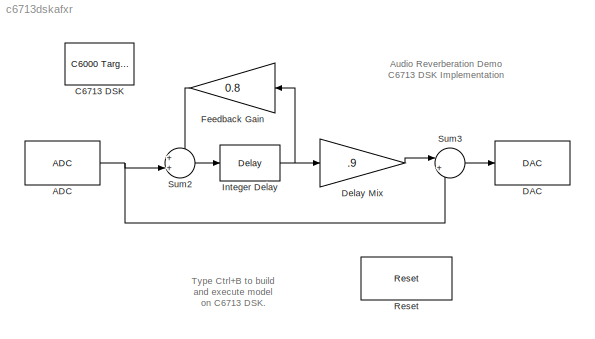
MODEL c6713dskafxr
KIND model
CONFIG PreLoadFcn = load dspafxr;
BLOCK [Reference] ADC  REF=c6713dsklib/ADC
  ADCsource = Mic In
  CodecDataFormat = 20-bit
  FrameSize = 64
  MicGain = off
  OutputDataType = Single
  Ports = [0, 1]
  SampleRate = 48 kHz
  Scaling = Normalize
  SourceBlock = c6713dsklib/ADC
  SourceGain = 0.0
  SourceType = C6713DSK ADC
  Stereo = on
BLOCK [Reference] C6713 DSK  REF=c6000tgtpreflib/C6000 Target\nPreferences
  Ports = []
  ShowPortLabels = on
  SourceBlock = c6000tgtpreflib/C6000 Target\nPreferences
  SourceType = C6000 Target Preferences
  UserData = DataTag0
  UserDataPersistent = on
BLOCK [Reference] DAC  REF=c6713dsklib/DAC
  CodecDataFormat = 20-bit
  DacAtten = 0.0
  OverflowMode = Saturate
  Ports = [1]
  Scaling = Normalize
  SourceBlock = c6713dsklib/DAC
  SourceType = C6713DSK DAC
BLOCK [Gain] Delay Mix
  Gain = .9
BLOCK [Gain] Feedback Gain
  Gain = 0.8
BLOCK [Reference] Integer Delay  REF=dspsigops/Delay
  Ports = [1, 1]
  SourceBlock = dspsigops/Delay
  SourceType = Delay
  delay = 24000
  dif_ic_for_ch = off
  dif_ic_for_dly = off
  dly_unit = Samples
  ic = 0
  ic_detail = off
  reset_popup = None
BLOCK [Reference] Reset  REF=c6713dsklib/Reset
  Ports = []
  ShowPortLabels = on
  SourceBlock = c6713dsklib/Reset
  SourceType = C6713DSK RESET
BLOCK [Sum] Sum2
  IconShape = round
  Inputs = ++|
  Ports = [2, 1]
BLOCK [Sum] Sum3
  IconShape = round
  Inputs = |++
  Ports = [2, 1]
ANNOTATION (root): Audio Reverberation Demo\nC6713 DSK Implementation
ANNOTATION (root): Type Ctrl+B to build\nand execute model\non C6713 DSK.
NET ADC:1 -> Sum2:2, Sum3:2
LINE Delay Mix:1 -> Sum3:1
LINE Feedback Gain:1 -> Sum2:1
NET Integer Delay:1 -> Delay Mix:1, Feedback Gain:1
LINE Sum2:1 -> Integer Delay:1
LINE Sum3:1 -> DAC:1
note: NET lines group one-source signal fan-out (src -> all destinations, sorted); 1:1 wires keep LINE
